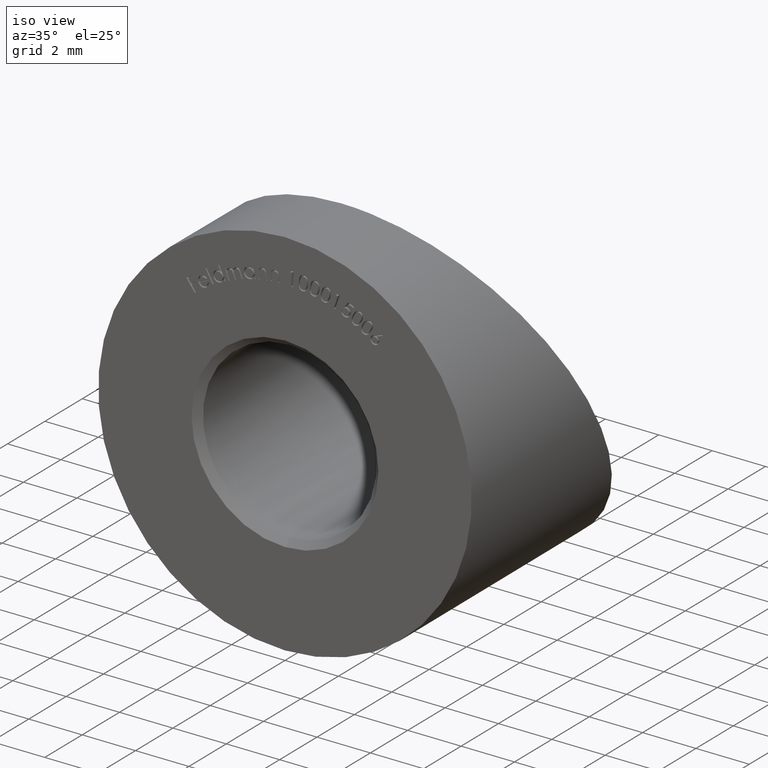
[diagram: clean part render]
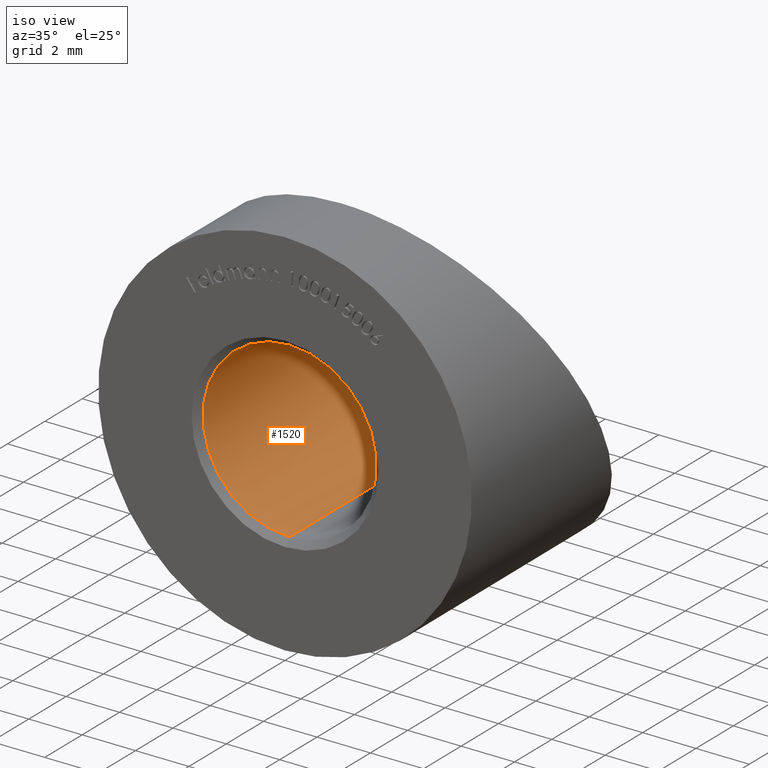
[diagram: same view with one face highlighted and labeled with its STEP entity id]
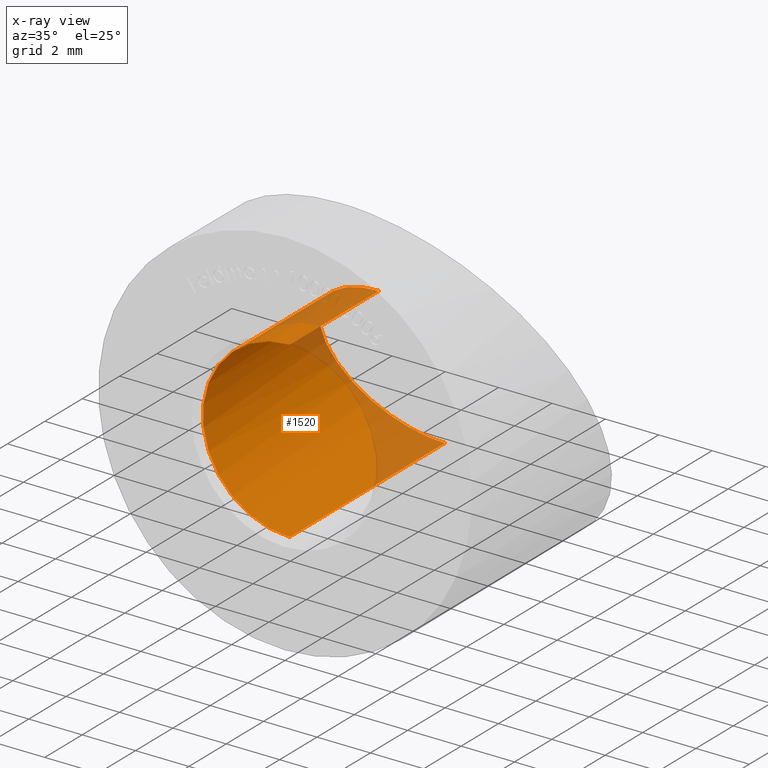
[diagram: x-ray of the same camera — body ghosted, the highlighted face saturated]
A machine part, iso view. The second image highlights one B-rep face of the part: STEP entity #1520.
The next image is the same camera in x-ray: the body ghosted, the highlighted face saturated — about 19% of this face is hidden behind the body in this view.
In plain terms, the highlighted cylindrical surface (partial cylindrical patch) has radius 3.25 mm, axis along (-0, -1, -0).
Its self-contained STEP definition (entity closure, byte-faithful):
#417 = EDGE_LOOP ( 'NONE', ( #11074, #12469, #1468, #2139 ) ) ;
#1288 = EDGE_CURVE ( 'NONE', #6679, #6235, #13436, .T. ) ;
#1468 = ORIENTED_EDGE ( 'NONE', *, *, #6869, .T. ) ;
#1520 = ADVANCED_FACE ( 'NONE', ( #6595 ), #8208, .F. ) ;
#1989 = CARTESIAN_POINT ( 'NONE',  ( 0.0000000000000000000, 10.60000000000000500, 0.0000000000000000000 ) ) ;
#2008 = CARTESIAN_POINT ( 'NONE',  ( 0.0000000000000000000, 10.60000000000000500, -3.250000000000000400 ) ) ;
#2056 =( BOUNDED_CURVE ( )  B_SPLINE_CURVE ( 3, ( #9690, #8508, #2408, #6561 ),
 .UNSPECIFIED., .F., .F. ) 
 B_SPLINE_CURVE_WITH_KNOTS ( ( 4, 4 ),
 ( 0.0000000000000000000, 3.141592653589793100 ),
 .UNSPECIFIED. ) 
 CURVE ( )  GEOMETRIC_REPRESENTATION_ITEM ( )  RATIONAL_B_SPLINE_CURVE ( ( 1.000000000000000000, 0.3333333333333333700, 0.3333333333333333700, 1.000000000000000000 ) ) 
 REPRESENTATION_ITEM ( '' )  );
#2114 = DIRECTION ( 'NONE',  ( -0.0000000000000000000, -1.000000000000000000, -0.0000000000000000000 ) ) ;
#2139 = ORIENTED_EDGE ( 'NONE', *, *, #1288, .F. ) ;
#2408 = CARTESIAN_POINT ( 'NONE',  ( -6.500000000000001800, 8.564285714285714900, -3.250000000000000900 ) ) ;
#2871 = CARTESIAN_POINT ( 'NONE',  ( 3.980102097228898200E-016, 5.035714285714282900, 3.250000000000000400 ) ) ;
#3575 = AXIS2_PLACEMENT_3D ( 'NONE', #3983, #10234, #11273 ) ;
#3837 = VERTEX_POINT ( 'NONE', #2871 ) ;
#3983 = CARTESIAN_POINT ( 'NONE',  ( 0.0000000000000000000, 0.2499999999999967500, 0.0000000000000000000 ) ) ;
#4202 = CARTESIAN_POINT ( 'NONE',  ( 0.0000000000000000000, 8.564285714285714900, -3.250000000000000400 ) ) ;
#5041 = LINE ( 'NONE', #10690, #13381 ) ;
#5296 = DIRECTION ( 'NONE',  ( -0.0000000000000000000, -1.000000000000000000, -0.0000000000000000000 ) ) ;
#6235 = VERTEX_POINT ( 'NONE', #7922 ) ;
#6561 = CARTESIAN_POINT ( 'NONE',  ( 0.0000000000000000000, 8.564285714285714900, -3.250000000000000400 ) ) ;
#6595 = FACE_OUTER_BOUND ( 'NONE', #417, .T. ) ;
#6679 = VERTEX_POINT ( 'NONE', #4202 ) ;
#6869 = EDGE_CURVE ( 'NONE', #7263, #6235, #8192, .T. ) ;
#7263 = VERTEX_POINT ( 'NONE', #12228 ) ;
#7922 = CARTESIAN_POINT ( 'NONE',  ( 0.0000000000000000000, 0.2499999999999967500, -3.250000000000000400 ) ) ;
#8192 = CIRCLE ( 'NONE', #3575, 3.250000000000000400 ) ;
#8208 = CYLINDRICAL_SURFACE ( 'NONE', #10276, 3.250000000000000400 ) ;
#8508 = CARTESIAN_POINT ( 'NONE',  ( -6.500000000000001800, 5.035714285714282000, 3.250000000000000900 ) ) ;
#9690 = CARTESIAN_POINT ( 'NONE',  ( 3.980102097228898200E-016, 5.035714285714282900, 3.250000000000000400 ) ) ;
#10234 = DIRECTION ( 'NONE',  ( 0.0000000000000000000, -1.000000000000000000, 0.0000000000000000000 ) ) ;
#10276 = AXIS2_PLACEMENT_3D ( 'NONE', #1989, #2114, #12416 ) ;
#10690 = CARTESIAN_POINT ( 'NONE',  ( 3.980102097228898200E-016, 10.60000000000000500, 3.250000000000000400 ) ) ;
#10875 = EDGE_CURVE ( 'NONE', #3837, #7263, #5041, .T. ) ;
#11074 = ORIENTED_EDGE ( 'NONE', *, *, #11650, .F. ) ;
#11273 = DIRECTION ( 'NONE',  ( 0.0000000000000000000, 0.0000000000000000000, 1.000000000000000000 ) ) ;
#11496 = DIRECTION ( 'NONE',  ( -0.0000000000000000000, -1.000000000000000000, -0.0000000000000000000 ) ) ;
#11650 = EDGE_CURVE ( 'NONE', #3837, #6679, #2056, .T. ) ;
#12228 = CARTESIAN_POINT ( 'NONE',  ( 3.980102097228898200E-016, 0.2499999999999967500, 3.250000000000000400 ) ) ;
#12299 = VECTOR ( 'NONE', #11496, 1000.000000000000000 ) ;
#12416 = DIRECTION ( 'NONE',  ( 0.0000000000000000000, 0.0000000000000000000, -1.000000000000000000 ) ) ;
#12469 = ORIENTED_EDGE ( 'NONE', *, *, #10875, .T. ) ;
#13381 = VECTOR ( 'NONE', #5296, 1000.000000000000000 ) ;
#13436 = LINE ( 'NONE', #2008, #12299 ) ;